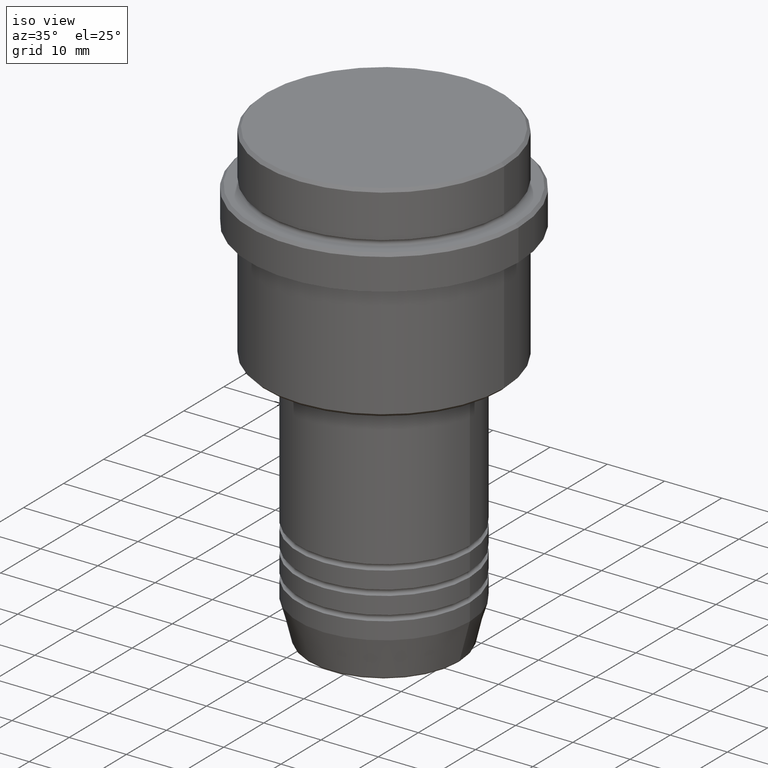
[diagram: clean part render]
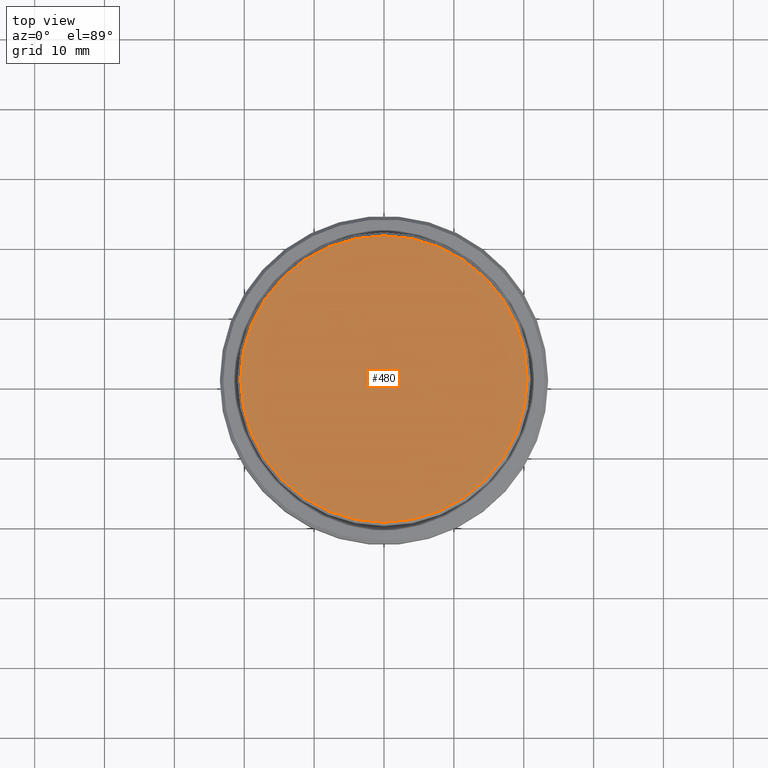
[diagram: tour spotlight — one face highlighted and labeled with its STEP entity id]
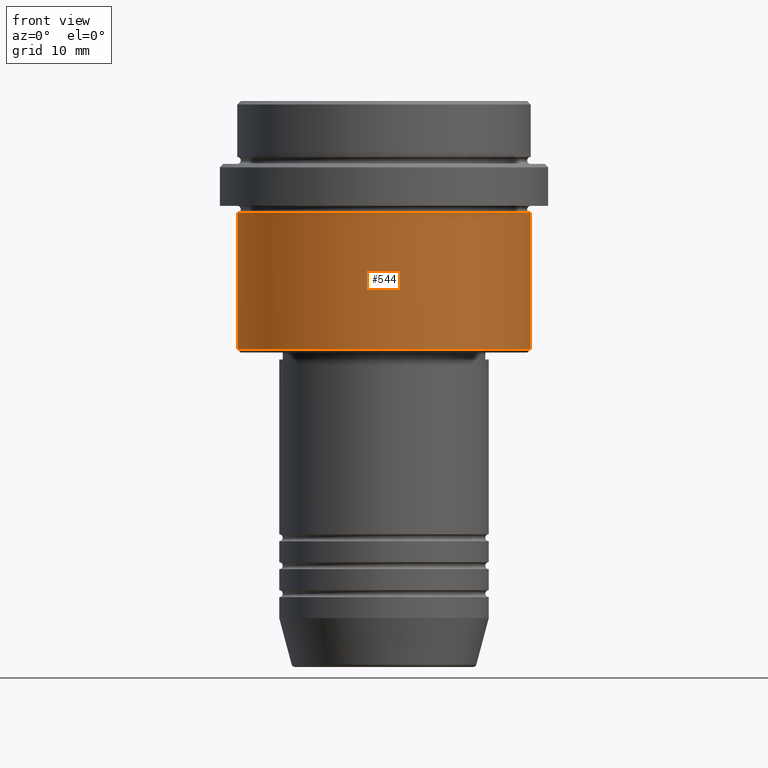
[diagram: tour spotlight — one face highlighted and labeled with its STEP entity id]
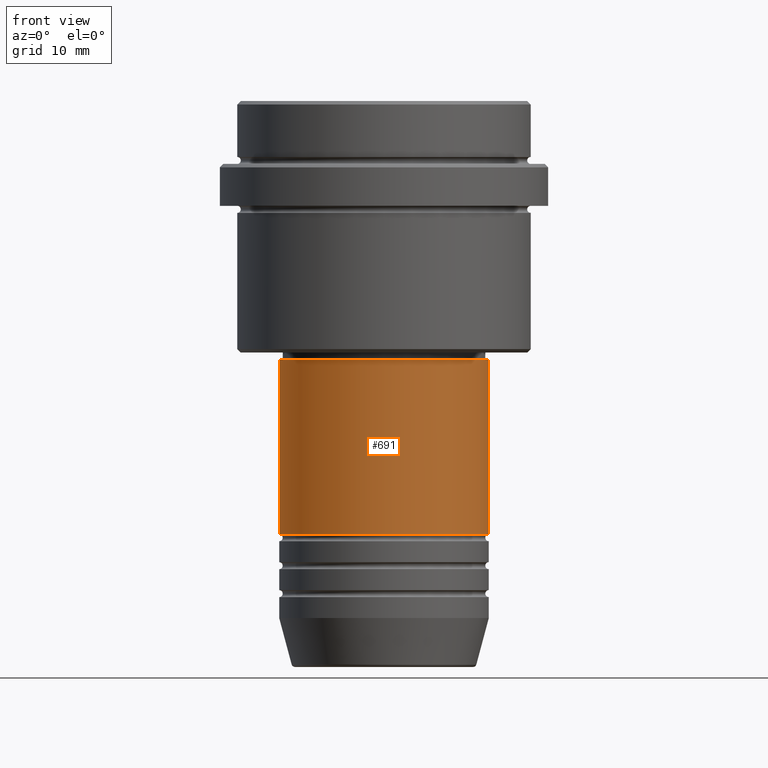
[diagram: tour spotlight — one face highlighted and labeled with its STEP entity id]
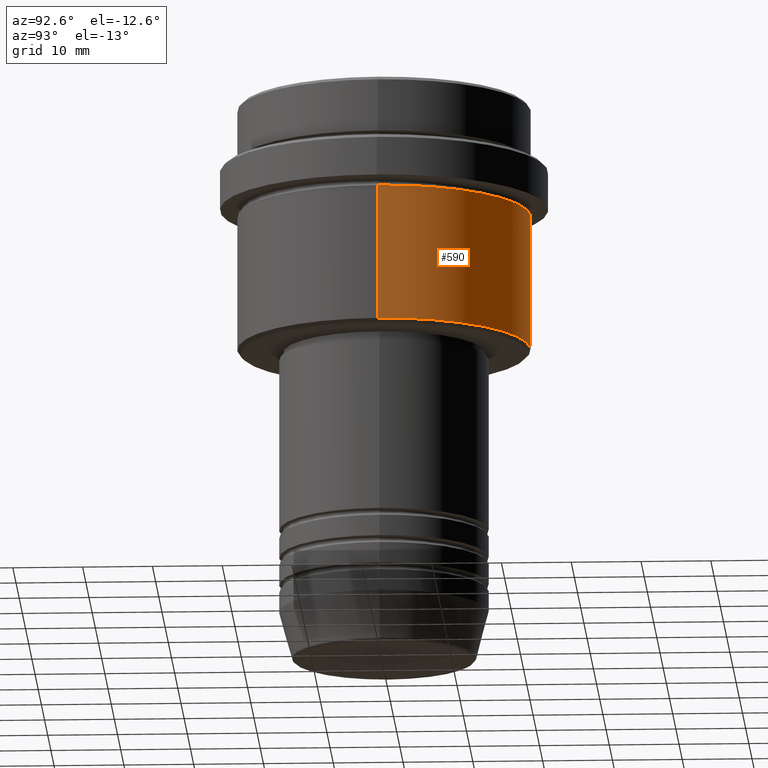
[diagram: tour spotlight — one face highlighted and labeled with its STEP entity id]
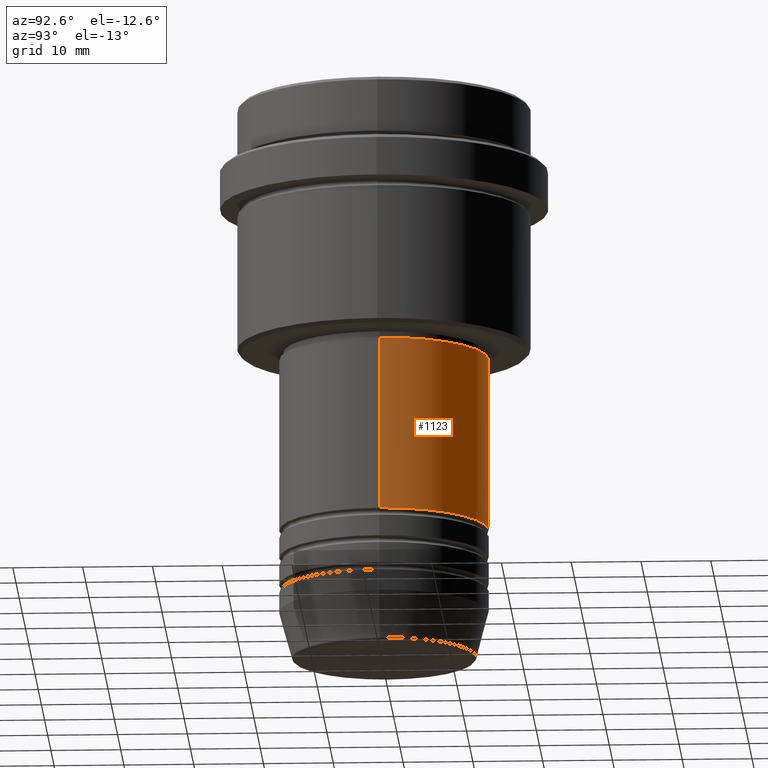
[diagram: tour spotlight — one face highlighted and labeled with its STEP entity id]
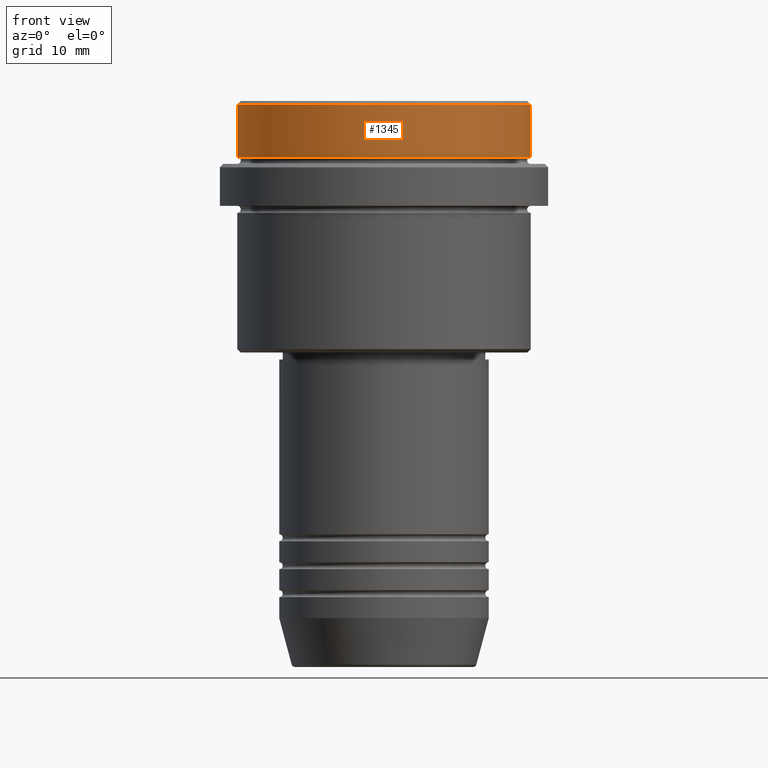
[diagram: tour spotlight — one face highlighted and labeled with its STEP entity id]
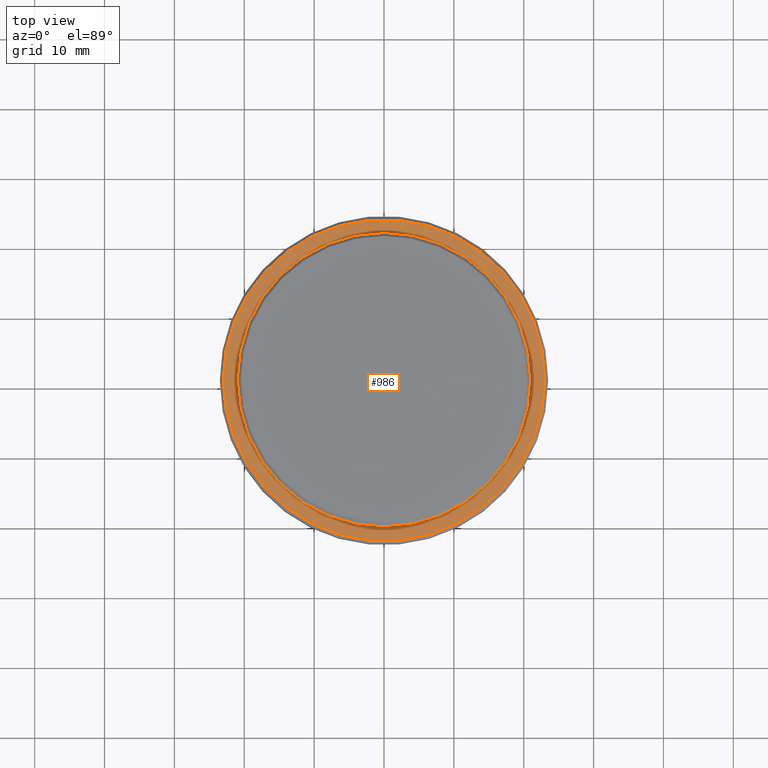
[diagram: tour spotlight — one face highlighted and labeled with its STEP entity id]
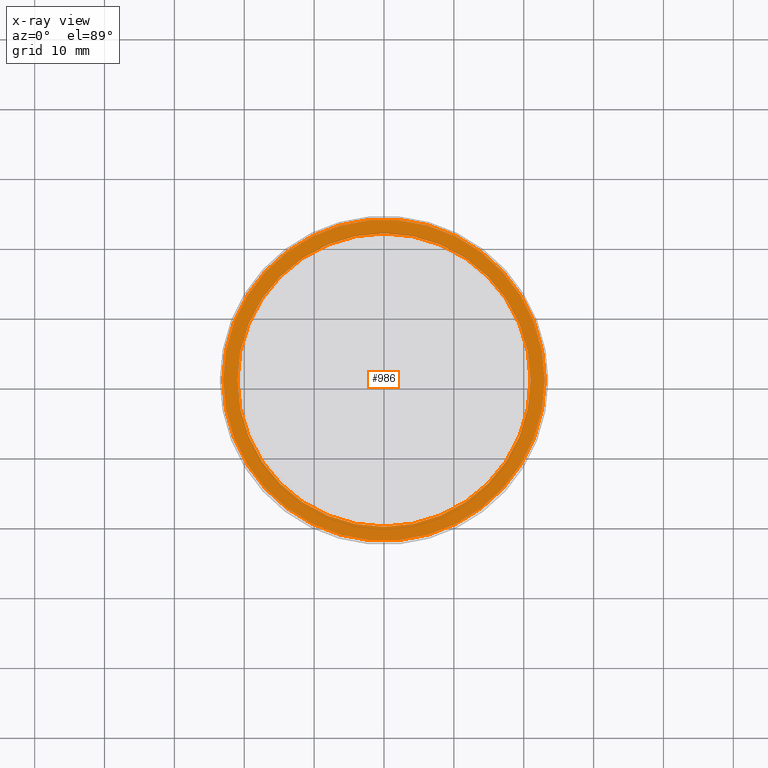
[diagram: x-ray of the same camera — body ghosted, this tour face saturated]
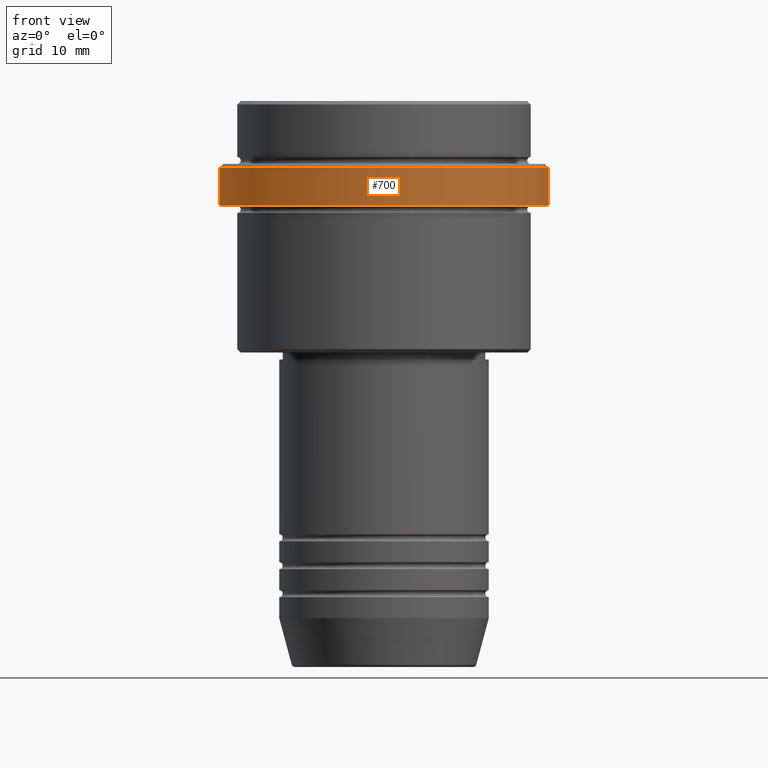
[diagram: tour spotlight — one face highlighted and labeled with its STEP entity id]
A machine part: a face-by-face anatomy tour. The part has 52 B-rep faces; the first image is the clean iso view, then the 8 largest visible faces are spotlighted one at a time (largest first), each with its STEP entity span.

Face 1 — top view, entity #480. In plain terms, the highlighted planar face has unit normal (0, -0, 1).
Definition (entity closure, byte-faithful):
#164 = PLANE ( 'NONE',  #1261 ) ;
#275 = DIRECTION ( 'NONE',  ( 1.000000000000000000, 0.000000000000000000, 0.000000000000000000 ) ) ;
#306 = VERTEX_POINT ( 'NONE', #1311 ) ;
#308 = FACE_OUTER_BOUND ( 'NONE', #526, .T. ) ;
#477 = DIRECTION ( 'NONE',  ( -0.000000000000000000, -0.000000000000000000, 1.000000000000000000 ) ) ;
#480 = ADVANCED_FACE ( 'NONE', ( #308 ), #164, .T. ) ;
#526 = EDGE_LOOP ( 'NONE', ( #1225, #992 ) ) ;
#538 = CARTESIAN_POINT ( 'NONE',  ( 0.000000000000000000, 0.000000000000000000, 0.000000000000000000 ) ) ;
#568 = AXIS2_PLACEMENT_3D ( 'NONE', #1256, #477, #1247 ) ;
#631 = DIRECTION ( 'NONE',  ( -0.000000000000000000, -0.000000000000000000, 1.000000000000000000 ) ) ;
#660 = CIRCLE ( 'NONE', #1349, 20.49999999999997513 ) ;
#774 = EDGE_CURVE ( 'NONE', #1086, #306, #660, .T. ) ;
#796 = CIRCLE ( 'NONE', #568, 20.49999999999997513 ) ;
#891 = EDGE_CURVE ( 'NONE', #306, #1086, #796, .T. ) ;
#951 = DIRECTION ( 'NONE',  ( 0.000000000000000000, -0.000000000000000000, 1.000000000000000000 ) ) ;
#992 = ORIENTED_EDGE ( 'NONE', *, *, #891, .T. ) ;
#1071 = CARTESIAN_POINT ( 'NONE',  ( 0.000000000000000000, 0.000000000000000000, 0.000000000000000000 ) ) ;
#1086 = VERTEX_POINT ( 'NONE', #1315 ) ;
#1225 = ORIENTED_EDGE ( 'NONE', *, *, #774, .T. ) ;
#1247 = DIRECTION ( 'NONE',  ( 1.000000000000000000, 0.000000000000000000, 0.000000000000000000 ) ) ;
#1256 = CARTESIAN_POINT ( 'NONE',  ( 0.000000000000000000, 0.000000000000000000, 0.000000000000000000 ) ) ;
#1261 = AXIS2_PLACEMENT_3D ( 'NONE', #1071, #951, #275 ) ;
#1267 = DIRECTION ( 'NONE',  ( 1.000000000000000000, 0.000000000000000000, 0.000000000000000000 ) ) ;
#1311 = CARTESIAN_POINT ( 'NONE',  ( 20.49999999999997513, 2.541142108230756691E-15, 0.000000000000000000 ) ) ;
#1315 = CARTESIAN_POINT ( 'NONE',  ( -20.49999999999997513, 0.000000000000000000, 0.000000000000000000 ) ) ;
#1349 = AXIS2_PLACEMENT_3D ( 'NONE', #538, #631, #1267 ) ;

Face 2 — front view, entity #544. In plain terms, the highlighted cylindrical surface (partial cylindrical patch) has radius 21 mm, axis along (-0, -0, 1).
Definition (entity closure, byte-faithful):
#8 = DIRECTION ( 'NONE',  ( -0.000000000000000000, -0.000000000000000000, 1.000000000000000000 ) ) ;
#88 = AXIS2_PLACEMENT_3D ( 'NONE', #887, #8, #1409 ) ;
#144 = EDGE_CURVE ( 'NONE', #1051, #1241, #520, .T. ) ;
#173 = CYLINDRICAL_SURFACE ( 'NONE', #1365, 21.00000000000000000 ) ;
#222 = DIRECTION ( 'NONE',  ( -0.000000000000000000, -0.000000000000000000, 1.000000000000000000 ) ) ;
#226 = VERTEX_POINT ( 'NONE', #930 ) ;
#239 = EDGE_CURVE ( 'NONE', #226, #860, #1366, .T. ) ;
#257 = EDGE_CURVE ( 'NONE', #1241, #860, #1144, .T. ) ;
#300 = DIRECTION ( 'NONE',  ( -0.000000000000000000, -0.000000000000000000, 1.000000000000000000 ) ) ;
#362 = ORIENTED_EDGE ( 'NONE', *, *, #1091, .T. ) ;
#406 = CIRCLE ( 'NONE', #1415, 21.00000000000000000 ) ;
#520 = LINE ( 'NONE', #963, #989 ) ;
#544 = ADVANCED_FACE ( 'NONE', ( #1160 ), #173, .T. ) ;
#632 = CARTESIAN_POINT ( 'NONE',  ( 0.000000000000000000, 0.000000000000000000, 0.000000000000000000 ) ) ;
#663 = CARTESIAN_POINT ( 'NONE',  ( 0.000000000000000000, 0.000000000000000000, -35.49999999999997158 ) ) ;
#669 = CARTESIAN_POINT ( 'NONE',  ( -21.00000000000000000, 2.571758278209441661E-15, -16.00000000000000355 ) ) ;
#750 = EDGE_LOOP ( 'NONE', ( #802, #362, #1097, #1151 ) ) ;
#802 = ORIENTED_EDGE ( 'NONE', *, *, #144, .F. ) ;
#832 = CARTESIAN_POINT ( 'NONE',  ( 21.00000000000000000, 0.000000000000000000, -16.00000000000000355 ) ) ;
#842 = CARTESIAN_POINT ( 'NONE',  ( 21.00000000000000000, 0.000000000000000000, 0.000000000000000000 ) ) ;
#860 = VERTEX_POINT ( 'NONE', #832 ) ;
#887 = CARTESIAN_POINT ( 'NONE',  ( 0.000000000000000000, 0.000000000000000000, -16.00000000000000355 ) ) ;
#930 = CARTESIAN_POINT ( 'NONE',  ( 21.00000000000000000, 0.000000000000000000, -35.49999999999997158 ) ) ;
#942 = VECTOR ( 'NONE', #300, 1000.000000000000000 ) ;
#963 = CARTESIAN_POINT ( 'NONE',  ( -21.00000000000000000, 2.571758278209441661E-15, 0.000000000000000000 ) ) ;
#989 = VECTOR ( 'NONE', #1289, 1000.000000000000000 ) ;
#1051 = VERTEX_POINT ( 'NONE', #1298 ) ;
#1091 = EDGE_CURVE ( 'NONE', #1051, #226, #406, .T. ) ;
#1097 = ORIENTED_EDGE ( 'NONE', *, *, #239, .T. ) ;
#1144 = CIRCLE ( 'NONE', #88, 21.00000000000000000 ) ;
#1151 = ORIENTED_EDGE ( 'NONE', *, *, #257, .F. ) ;
#1154 = DIRECTION ( 'NONE',  ( 1.000000000000000000, 0.000000000000000000, 0.000000000000000000 ) ) ;
#1160 = FACE_OUTER_BOUND ( 'NONE', #750, .T. ) ;
#1183 = DIRECTION ( 'NONE',  ( -0.000000000000000000, -0.000000000000000000, 1.000000000000000000 ) ) ;
#1221 = DIRECTION ( 'NONE',  ( -1.000000000000000000, 0.000000000000000000, 0.000000000000000000 ) ) ;
#1241 = VERTEX_POINT ( 'NONE', #669 ) ;
#1289 = DIRECTION ( 'NONE',  ( -0.000000000000000000, -0.000000000000000000, 1.000000000000000000 ) ) ;
#1298 = CARTESIAN_POINT ( 'NONE',  ( -21.00000000000000000, 2.571758278209441661E-15, -35.49999999999997158 ) ) ;
#1365 = AXIS2_PLACEMENT_3D ( 'NONE', #632, #1183, #1154 ) ;
#1366 = LINE ( 'NONE', #842, #942 ) ;
#1409 = DIRECTION ( 'NONE',  ( 1.000000000000000000, 0.000000000000000000, 0.000000000000000000 ) ) ;
#1415 = AXIS2_PLACEMENT_3D ( 'NONE', #663, #222, #1221 ) ;

Face 3 — front view, entity #691. In plain terms, the highlighted cylindrical surface (partial cylindrical patch) has radius 15 mm, axis along (-0, -0, 1).
Definition (entity closure, byte-faithful):
#5 = ORIENTED_EDGE ( 'NONE', *, *, #312, .T. ) ;
#93 = CYLINDRICAL_SURFACE ( 'NONE', #652, 15.00000000000000000 ) ;
#171 = ORIENTED_EDGE ( 'NONE', *, *, #670, .F. ) ;
#234 = EDGE_CURVE ( 'NONE', #798, #1372, #383, .T. ) ;
#312 = EDGE_CURVE ( 'NONE', #730, #824, #324, .T. ) ;
#324 = LINE ( 'NONE', #760, #1105 ) ;
#325 = AXIS2_PLACEMENT_3D ( 'NONE', #969, #1277, #527 ) ;
#383 = LINE ( 'NONE', #825, #1121 ) ;
#414 = ORIENTED_EDGE ( 'NONE', *, *, #234, .F. ) ;
#430 = DIRECTION ( 'NONE',  ( 1.000000000000000000, 0.000000000000000000, 0.000000000000000000 ) ) ;
#481 = EDGE_CURVE ( 'NONE', #798, #730, #649, .T. ) ;
#486 = DIRECTION ( 'NONE',  ( -0.000000000000000000, -0.000000000000000000, 1.000000000000000000 ) ) ;
#491 = CARTESIAN_POINT ( 'NONE',  ( -15.00000000000000000, 1.836970198721029589E-15, -37.00000000000000000 ) ) ;
#527 = DIRECTION ( 'NONE',  ( 1.000000000000000000, 0.000000000000000000, 0.000000000000000000 ) ) ;
#623 = CIRCLE ( 'NONE', #1314, 15.00000000000000000 ) ;
#635 = CARTESIAN_POINT ( 'NONE',  ( 15.00000000000000000, 0.000000000000000000, -61.99999999999987921 ) ) ;
#649 = CIRCLE ( 'NONE', #325, 15.00000000000000000 ) ;
#652 = AXIS2_PLACEMENT_3D ( 'NONE', #657, #1413, #430 ) ;
#657 = CARTESIAN_POINT ( 'NONE',  ( 0.000000000000000000, 0.000000000000000000, 0.000000000000000000 ) ) ;
#670 = EDGE_CURVE ( 'NONE', #1372, #824, #623, .T. ) ;
#691 = ADVANCED_FACE ( 'NONE', ( #856 ), #93, .T. ) ;
#694 = ORIENTED_EDGE ( 'NONE', *, *, #481, .T. ) ;
#701 = EDGE_LOOP ( 'NONE', ( #414, #694, #5, #171 ) ) ;
#702 = CARTESIAN_POINT ( 'NONE',  ( -15.00000000000000000, 1.836970198721029589E-15, -61.99999999999987921 ) ) ;
#730 = VERTEX_POINT ( 'NONE', #635 ) ;
#760 = CARTESIAN_POINT ( 'NONE',  ( 15.00000000000000000, 0.000000000000000000, 0.000000000000000000 ) ) ;
#798 = VERTEX_POINT ( 'NONE', #702 ) ;
#824 = VERTEX_POINT ( 'NONE', #1130 ) ;
#825 = CARTESIAN_POINT ( 'NONE',  ( -15.00000000000000000, 1.836970198721029589E-15, 0.000000000000000000 ) ) ;
#856 = FACE_OUTER_BOUND ( 'NONE', #701, .T. ) ;
#969 = CARTESIAN_POINT ( 'NONE',  ( 0.000000000000000000, 0.000000000000000000, -61.99999999999987921 ) ) ;
#1028 = CARTESIAN_POINT ( 'NONE',  ( 0.000000000000000000, 0.000000000000000000, -37.00000000000000000 ) ) ;
#1038 = DIRECTION ( 'NONE',  ( 1.000000000000000000, 0.000000000000000000, 0.000000000000000000 ) ) ;
#1105 = VECTOR ( 'NONE', #1191, 1000.000000000000000 ) ;
#1121 = VECTOR ( 'NONE', #1263, 1000.000000000000000 ) ;
#1130 = CARTESIAN_POINT ( 'NONE',  ( 15.00000000000000000, 0.000000000000000000, -37.00000000000000000 ) ) ;
#1191 = DIRECTION ( 'NONE',  ( -0.000000000000000000, -0.000000000000000000, 1.000000000000000000 ) ) ;
#1263 = DIRECTION ( 'NONE',  ( -0.000000000000000000, -0.000000000000000000, 1.000000000000000000 ) ) ;
#1277 = DIRECTION ( 'NONE',  ( -0.000000000000000000, -0.000000000000000000, 1.000000000000000000 ) ) ;
#1314 = AXIS2_PLACEMENT_3D ( 'NONE', #1028, #486, #1038 ) ;
#1372 = VERTEX_POINT ( 'NONE', #491 ) ;
#1413 = DIRECTION ( 'NONE',  ( -0.000000000000000000, -0.000000000000000000, 1.000000000000000000 ) ) ;

Face 4 — auxiliary view, entity #590. In plain terms, the highlighted cylindrical surface (partial cylindrical patch) has radius 21 mm, axis along (-0, -0, 1).
Definition (entity closure, byte-faithful):
#17 = DIRECTION ( 'NONE',  ( -1.000000000000000000, 0.000000000000000000, 0.000000000000000000 ) ) ;
#79 = CIRCLE ( 'NONE', #262, 21.00000000000000000 ) ;
#84 = ORIENTED_EDGE ( 'NONE', *, *, #1153, .T. ) ;
#97 = CYLINDRICAL_SURFACE ( 'NONE', #1122, 21.00000000000000000 ) ;
#130 = DIRECTION ( 'NONE',  ( -0.000000000000000000, -0.000000000000000000, 1.000000000000000000 ) ) ;
#134 = DIRECTION ( 'NONE',  ( 1.000000000000000000, 0.000000000000000000, 0.000000000000000000 ) ) ;
#144 = EDGE_CURVE ( 'NONE', #1051, #1241, #520, .T. ) ;
#226 = VERTEX_POINT ( 'NONE', #930 ) ;
#239 = EDGE_CURVE ( 'NONE', #226, #860, #1366, .T. ) ;
#262 = AXIS2_PLACEMENT_3D ( 'NONE', #443, #130, #17 ) ;
#300 = DIRECTION ( 'NONE',  ( -0.000000000000000000, -0.000000000000000000, 1.000000000000000000 ) ) ;
#340 = EDGE_CURVE ( 'NONE', #860, #1241, #413, .T. ) ;
#355 = ORIENTED_EDGE ( 'NONE', *, *, #340, .F. ) ;
#384 = AXIS2_PLACEMENT_3D ( 'NONE', #458, #1227, #134 ) ;
#405 = FACE_OUTER_BOUND ( 'NONE', #982, .T. ) ;
#413 = CIRCLE ( 'NONE', #384, 21.00000000000000000 ) ;
#443 = CARTESIAN_POINT ( 'NONE',  ( 0.000000000000000000, 0.000000000000000000, -35.49999999999997158 ) ) ;
#458 = CARTESIAN_POINT ( 'NONE',  ( 0.000000000000000000, 0.000000000000000000, -16.00000000000000355 ) ) ;
#520 = LINE ( 'NONE', #963, #989 ) ;
#590 = ADVANCED_FACE ( 'NONE', ( #405 ), #97, .T. ) ;
#669 = CARTESIAN_POINT ( 'NONE',  ( -21.00000000000000000, 2.571758278209441661E-15, -16.00000000000000355 ) ) ;
#791 = ORIENTED_EDGE ( 'NONE', *, *, #239, .F. ) ;
#832 = CARTESIAN_POINT ( 'NONE',  ( 21.00000000000000000, 0.000000000000000000, -16.00000000000000355 ) ) ;
#842 = CARTESIAN_POINT ( 'NONE',  ( 21.00000000000000000, 0.000000000000000000, 0.000000000000000000 ) ) ;
#860 = VERTEX_POINT ( 'NONE', #832 ) ;
#869 = DIRECTION ( 'NONE',  ( 1.000000000000000000, 0.000000000000000000, 0.000000000000000000 ) ) ;
#930 = CARTESIAN_POINT ( 'NONE',  ( 21.00000000000000000, 0.000000000000000000, -35.49999999999997158 ) ) ;
#942 = VECTOR ( 'NONE', #300, 1000.000000000000000 ) ;
#963 = CARTESIAN_POINT ( 'NONE',  ( -21.00000000000000000, 2.571758278209441661E-15, 0.000000000000000000 ) ) ;
#982 = EDGE_LOOP ( 'NONE', ( #84, #1198, #355, #791 ) ) ;
#984 = CARTESIAN_POINT ( 'NONE',  ( 0.000000000000000000, 0.000000000000000000, 0.000000000000000000 ) ) ;
#989 = VECTOR ( 'NONE', #1289, 1000.000000000000000 ) ;
#1051 = VERTEX_POINT ( 'NONE', #1298 ) ;
#1122 = AXIS2_PLACEMENT_3D ( 'NONE', #984, #1410, #869 ) ;
#1153 = EDGE_CURVE ( 'NONE', #226, #1051, #79, .T. ) ;
#1198 = ORIENTED_EDGE ( 'NONE', *, *, #144, .T. ) ;
#1227 = DIRECTION ( 'NONE',  ( -0.000000000000000000, -0.000000000000000000, 1.000000000000000000 ) ) ;
#1241 = VERTEX_POINT ( 'NONE', #669 ) ;
#1289 = DIRECTION ( 'NONE',  ( -0.000000000000000000, -0.000000000000000000, 1.000000000000000000 ) ) ;
#1298 = CARTESIAN_POINT ( 'NONE',  ( -21.00000000000000000, 2.571758278209441661E-15, -35.49999999999997158 ) ) ;
#1366 = LINE ( 'NONE', #842, #942 ) ;
#1410 = DIRECTION ( 'NONE',  ( -0.000000000000000000, -0.000000000000000000, 1.000000000000000000 ) ) ;

Face 5 — auxiliary view, entity #1123. In plain terms, the highlighted cylindrical surface (partial cylindrical patch) has radius 15 mm, axis along (-0, -0, 1).
Definition (entity closure, byte-faithful):
#52 = DIRECTION ( 'NONE',  ( -0.000000000000000000, -0.000000000000000000, 1.000000000000000000 ) ) ;
#78 = DIRECTION ( 'NONE',  ( 1.000000000000000000, 0.000000000000000000, 0.000000000000000000 ) ) ;
#116 = AXIS2_PLACEMENT_3D ( 'NONE', #422, #752, #533 ) ;
#129 = EDGE_LOOP ( 'NONE', ( #1009, #315, #567, #403 ) ) ;
#234 = EDGE_CURVE ( 'NONE', #798, #1372, #383, .T. ) ;
#312 = EDGE_CURVE ( 'NONE', #730, #824, #324, .T. ) ;
#315 = ORIENTED_EDGE ( 'NONE', *, *, #234, .T. ) ;
#324 = LINE ( 'NONE', #760, #1105 ) ;
#383 = LINE ( 'NONE', #825, #1121 ) ;
#403 = ORIENTED_EDGE ( 'NONE', *, *, #312, .F. ) ;
#422 = CARTESIAN_POINT ( 'NONE',  ( 0.000000000000000000, 0.000000000000000000, -37.00000000000000000 ) ) ;
#451 = AXIS2_PLACEMENT_3D ( 'NONE', #941, #52, #78 ) ;
#465 = EDGE_CURVE ( 'NONE', #730, #798, #1082, .T. ) ;
#491 = CARTESIAN_POINT ( 'NONE',  ( -15.00000000000000000, 1.836970198721029589E-15, -37.00000000000000000 ) ) ;
#504 = EDGE_CURVE ( 'NONE', #824, #1372, #1262, .T. ) ;
#533 = DIRECTION ( 'NONE',  ( 1.000000000000000000, 0.000000000000000000, 0.000000000000000000 ) ) ;
#549 = AXIS2_PLACEMENT_3D ( 'NONE', #988, #897, #1096 ) ;
#567 = ORIENTED_EDGE ( 'NONE', *, *, #504, .F. ) ;
#635 = CARTESIAN_POINT ( 'NONE',  ( 15.00000000000000000, 0.000000000000000000, -61.99999999999987921 ) ) ;
#702 = CARTESIAN_POINT ( 'NONE',  ( -15.00000000000000000, 1.836970198721029589E-15, -61.99999999999987921 ) ) ;
#730 = VERTEX_POINT ( 'NONE', #635 ) ;
#752 = DIRECTION ( 'NONE',  ( -0.000000000000000000, -0.000000000000000000, 1.000000000000000000 ) ) ;
#760 = CARTESIAN_POINT ( 'NONE',  ( 15.00000000000000000, 0.000000000000000000, 0.000000000000000000 ) ) ;
#798 = VERTEX_POINT ( 'NONE', #702 ) ;
#824 = VERTEX_POINT ( 'NONE', #1130 ) ;
#825 = CARTESIAN_POINT ( 'NONE',  ( -15.00000000000000000, 1.836970198721029589E-15, 0.000000000000000000 ) ) ;
#897 = DIRECTION ( 'NONE',  ( -0.000000000000000000, -0.000000000000000000, 1.000000000000000000 ) ) ;
#941 = CARTESIAN_POINT ( 'NONE',  ( 0.000000000000000000, 0.000000000000000000, -61.99999999999987921 ) ) ;
#988 = CARTESIAN_POINT ( 'NONE',  ( 0.000000000000000000, 0.000000000000000000, 0.000000000000000000 ) ) ;
#1009 = ORIENTED_EDGE ( 'NONE', *, *, #465, .T. ) ;
#1082 = CIRCLE ( 'NONE', #451, 15.00000000000000000 ) ;
#1096 = DIRECTION ( 'NONE',  ( 1.000000000000000000, 0.000000000000000000, 0.000000000000000000 ) ) ;
#1104 = CYLINDRICAL_SURFACE ( 'NONE', #549, 15.00000000000000000 ) ;
#1105 = VECTOR ( 'NONE', #1191, 1000.000000000000000 ) ;
#1121 = VECTOR ( 'NONE', #1263, 1000.000000000000000 ) ;
#1123 = ADVANCED_FACE ( 'NONE', ( #1325 ), #1104, .T. ) ;
#1130 = CARTESIAN_POINT ( 'NONE',  ( 15.00000000000000000, 0.000000000000000000, -37.00000000000000000 ) ) ;
#1191 = DIRECTION ( 'NONE',  ( -0.000000000000000000, -0.000000000000000000, 1.000000000000000000 ) ) ;
#1262 = CIRCLE ( 'NONE', #116, 15.00000000000000000 ) ;
#1263 = DIRECTION ( 'NONE',  ( -0.000000000000000000, -0.000000000000000000, 1.000000000000000000 ) ) ;
#1325 = FACE_OUTER_BOUND ( 'NONE', #129, .T. ) ;
#1372 = VERTEX_POINT ( 'NONE', #491 ) ;

Face 6 — front view, entity #1345. In plain terms, the highlighted cylindrical surface (partial cylindrical patch) has radius 21 mm, axis along (-0, -0, 1).
Definition (entity closure, byte-faithful):
#59 = VERTEX_POINT ( 'NONE', #1368 ) ;
#215 = LINE ( 'NONE', #658, #318 ) ;
#263 = VERTEX_POINT ( 'NONE', #885 ) ;
#301 = DIRECTION ( 'NONE',  ( 1.000000000000000000, 0.000000000000000000, 0.000000000000000000 ) ) ;
#318 = VECTOR ( 'NONE', #1092, 1000.000000000000000 ) ;
#354 = CYLINDRICAL_SURFACE ( 'NONE', #570, 21.00000000000000000 ) ;
#371 = ORIENTED_EDGE ( 'NONE', *, *, #535, .T. ) ;
#382 = CIRCLE ( 'NONE', #1101, 21.00000000000000000 ) ;
#457 = ORIENTED_EDGE ( 'NONE', *, *, #460, .T. ) ;
#460 = EDGE_CURVE ( 'NONE', #466, #1399, #806, .T. ) ;
#466 = VERTEX_POINT ( 'NONE', #851 ) ;
#535 = EDGE_CURVE ( 'NONE', #1399, #59, #723, .T. ) ;
#570 = AXIS2_PLACEMENT_3D ( 'NONE', #811, #1231, #704 ) ;
#585 = DIRECTION ( 'NONE',  ( 0.000000000000000000, 0.000000000000000000, -1.000000000000000000 ) ) ;
#603 = EDGE_LOOP ( 'NONE', ( #939, #457, #371, #1062 ) ) ;
#658 = CARTESIAN_POINT ( 'NONE',  ( -21.00000000000000000, 2.571758278209441661E-15, 0.000000000000000000 ) ) ;
#699 = DIRECTION ( 'NONE',  ( 1.000000000000000000, 0.000000000000000000, 0.000000000000000000 ) ) ;
#704 = DIRECTION ( 'NONE',  ( 1.000000000000000000, 0.000000000000000000, 0.000000000000000000 ) ) ;
#712 = AXIS2_PLACEMENT_3D ( 'NONE', #1393, #843, #301 ) ;
#723 = LINE ( 'NONE', #1176, #917 ) ;
#806 = CIRCLE ( 'NONE', #712, 21.00000000000000000 ) ;
#811 = CARTESIAN_POINT ( 'NONE',  ( 0.000000000000000000, 0.000000000000000000, 0.000000000000000000 ) ) ;
#843 = DIRECTION ( 'NONE',  ( -0.000000000000000000, -0.000000000000000000, 1.000000000000000000 ) ) ;
#851 = CARTESIAN_POINT ( 'NONE',  ( -21.00000000000000000, 2.571758278209441661E-15, -7.999999999999998224 ) ) ;
#885 = CARTESIAN_POINT ( 'NONE',  ( -21.00000000000000000, 2.571758278209441661E-15, -0.5000000000000247580 ) ) ;
#917 = VECTOR ( 'NONE', #1167, 1000.000000000000000 ) ;
#934 = EDGE_CURVE ( 'NONE', #466, #263, #215, .T. ) ;
#939 = ORIENTED_EDGE ( 'NONE', *, *, #934, .F. ) ;
#1062 = ORIENTED_EDGE ( 'NONE', *, *, #1245, .T. ) ;
#1067 = CARTESIAN_POINT ( 'NONE',  ( 21.00000000000000000, 0.000000000000000000, -7.999999999999998224 ) ) ;
#1092 = DIRECTION ( 'NONE',  ( -0.000000000000000000, -0.000000000000000000, 1.000000000000000000 ) ) ;
#1101 = AXIS2_PLACEMENT_3D ( 'NONE', #1266, #585, #699 ) ;
#1167 = DIRECTION ( 'NONE',  ( -0.000000000000000000, -0.000000000000000000, 1.000000000000000000 ) ) ;
#1176 = CARTESIAN_POINT ( 'NONE',  ( 21.00000000000000000, 0.000000000000000000, 0.000000000000000000 ) ) ;
#1231 = DIRECTION ( 'NONE',  ( -0.000000000000000000, -0.000000000000000000, 1.000000000000000000 ) ) ;
#1245 = EDGE_CURVE ( 'NONE', #59, #263, #382, .T. ) ;
#1266 = CARTESIAN_POINT ( 'NONE',  ( 0.000000000000000000, 0.000000000000000000, -0.5000000000000247580 ) ) ;
#1336 = FACE_OUTER_BOUND ( 'NONE', #603, .T. ) ;
#1345 = ADVANCED_FACE ( 'NONE', ( #1336 ), #354, .T. ) ;
#1368 = CARTESIAN_POINT ( 'NONE',  ( 21.00000000000000000, 0.000000000000000000, -0.5000000000000247580 ) ) ;
#1393 = CARTESIAN_POINT ( 'NONE',  ( 0.000000000000000000, 0.000000000000000000, -7.999999999999998224 ) ) ;
#1399 = VERTEX_POINT ( 'NONE', #1067 ) ;

Face 7 — top view, entity #986. An x-ray twin of the same camera follows (body ghosted, this face saturated) — the face is partly hidden behind the body. In plain terms, the highlighted planar face has unit normal (0, -0, 1).
Definition (entity closure, byte-faithful):
#28 = EDGE_LOOP ( 'NONE', ( #1189, #141 ) ) ;
#83 = ORIENTED_EDGE ( 'NONE', *, *, #195, .T. ) ;
#102 = FACE_BOUND ( 'NONE', #1182, .T. ) ;
#120 = DIRECTION ( 'NONE',  ( -0.000000000000000000, -0.000000000000000000, 1.000000000000000000 ) ) ;
#125 = AXIS2_PLACEMENT_3D ( 'NONE', #1283, #189, #295 ) ;
#139 = VERTEX_POINT ( 'NONE', #633 ) ;
#141 = ORIENTED_EDGE ( 'NONE', *, *, #1352, .T. ) ;
#148 = AXIS2_PLACEMENT_3D ( 'NONE', #256, #1137, #925 ) ;
#165 = EDGE_CURVE ( 'NONE', #1317, #1246, #556, .T. ) ;
#189 = DIRECTION ( 'NONE',  ( 0.000000000000000000, -0.000000000000000000, 1.000000000000000000 ) ) ;
#195 = EDGE_CURVE ( 'NONE', #1246, #1317, #501, .T. ) ;
#206 = AXIS2_PLACEMENT_3D ( 'NONE', #213, #1404, #1090 ) ;
#213 = CARTESIAN_POINT ( 'NONE',  ( 0.000000000000000000, 0.000000000000000000, -9.000000000000000000 ) ) ;
#220 = CARTESIAN_POINT ( 'NONE',  ( 0.000000000000000000, 0.000000000000000000, -9.000000000000000000 ) ) ;
#256 = CARTESIAN_POINT ( 'NONE',  ( 0.000000000000000000, 0.000000000000000000, -9.000000000000000000 ) ) ;
#277 = CARTESIAN_POINT ( 'NONE',  ( 20.99999999999999289, 0.000000000000000000, -9.000000000000000000 ) ) ;
#286 = PLANE ( 'NONE',  #125 ) ;
#295 = DIRECTION ( 'NONE',  ( 1.000000000000000000, 0.000000000000000000, 0.000000000000000000 ) ) ;
#342 = CIRCLE ( 'NONE', #668, 23.00000000000001066 ) ;
#361 = AXIS2_PLACEMENT_3D ( 'NONE', #220, #1213, #1094 ) ;
#423 = FACE_OUTER_BOUND ( 'NONE', #28, .T. ) ;
#437 = DIRECTION ( 'NONE',  ( 1.000000000000000000, 0.000000000000000000, 0.000000000000000000 ) ) ;
#447 = CARTESIAN_POINT ( 'NONE',  ( 0.000000000000000000, 0.000000000000000000, -9.000000000000000000 ) ) ;
#501 = CIRCLE ( 'NONE', #361, 20.99999999999999289 ) ;
#556 = CIRCLE ( 'NONE', #206, 20.99999999999999289 ) ;
#633 = CARTESIAN_POINT ( 'NONE',  ( 23.00000000000001066, 2.847303808017596928E-15, -9.000000000000000000 ) ) ;
#668 = AXIS2_PLACEMENT_3D ( 'NONE', #447, #120, #437 ) ;
#925 = DIRECTION ( 'NONE',  ( 1.000000000000000000, 0.000000000000000000, 0.000000000000000000 ) ) ;
#986 = ADVANCED_FACE ( 'NONE', ( #423, #102 ), #286, .T. ) ;
#1035 = CARTESIAN_POINT ( 'NONE',  ( -20.99999999999999289, 2.571758278209440872E-15, -9.000000000000000000 ) ) ;
#1090 = DIRECTION ( 'NONE',  ( 1.000000000000000000, 0.000000000000000000, 0.000000000000000000 ) ) ;
#1094 = DIRECTION ( 'NONE',  ( 1.000000000000000000, 0.000000000000000000, 0.000000000000000000 ) ) ;
#1137 = DIRECTION ( 'NONE',  ( -0.000000000000000000, -0.000000000000000000, 1.000000000000000000 ) ) ;
#1143 = VERTEX_POINT ( 'NONE', #1329 ) ;
#1182 = EDGE_LOOP ( 'NONE', ( #83, #1408 ) ) ;
#1189 = ORIENTED_EDGE ( 'NONE', *, *, #1208, .T. ) ;
#1208 = EDGE_CURVE ( 'NONE', #1143, #139, #342, .T. ) ;
#1213 = DIRECTION ( 'NONE',  ( 0.000000000000000000, 0.000000000000000000, -1.000000000000000000 ) ) ;
#1246 = VERTEX_POINT ( 'NONE', #277 ) ;
#1282 = CIRCLE ( 'NONE', #148, 23.00000000000001066 ) ;
#1283 = CARTESIAN_POINT ( 'NONE',  ( 0.000000000000000000, 20.49999999999999645, -9.000000000000000000 ) ) ;
#1317 = VERTEX_POINT ( 'NONE', #1035 ) ;
#1329 = CARTESIAN_POINT ( 'NONE',  ( -23.00000000000001066, 0.000000000000000000, -9.000000000000000000 ) ) ;
#1352 = EDGE_CURVE ( 'NONE', #139, #1143, #1282, .T. ) ;
#1404 = DIRECTION ( 'NONE',  ( 0.000000000000000000, 0.000000000000000000, -1.000000000000000000 ) ) ;
#1408 = ORIENTED_EDGE ( 'NONE', *, *, #165, .T. ) ;

Face 8 — front view, entity #700. In plain terms, the highlighted cylindrical surface (partial cylindrical patch) has radius 23.5 mm, axis along (-0, -0, 1).
Definition (entity closure, byte-faithful):
#35 = VERTEX_POINT ( 'NONE', #1346 ) ;
#122 = EDGE_CURVE ( 'NONE', #600, #612, #1140, .T. ) ;
#140 = DIRECTION ( 'NONE',  ( -0.000000000000000000, -0.000000000000000000, 1.000000000000000000 ) ) ;
#187 = CARTESIAN_POINT ( 'NONE',  ( 0.000000000000000000, 0.000000000000000000, -9.500000000000000000 ) ) ;
#218 = CARTESIAN_POINT ( 'NONE',  ( -23.50000000000000711, 2.877919977996281109E-15, -15.00000000000000000 ) ) ;
#225 = DIRECTION ( 'NONE',  ( -0.000000000000000000, -0.000000000000000000, 1.000000000000000000 ) ) ;
#254 = EDGE_CURVE ( 'NONE', #35, #600, #1327, .T. ) ;
#314 = VERTEX_POINT ( 'NONE', #218 ) ;
#328 = CARTESIAN_POINT ( 'NONE',  ( 0.000000000000000000, 0.000000000000000000, 0.000000000000000000 ) ) ;
#356 = AXIS2_PLACEMENT_3D ( 'NONE', #816, #140, #582 ) ;
#425 = ORIENTED_EDGE ( 'NONE', *, *, #854, .T. ) ;
#433 = CARTESIAN_POINT ( 'NONE',  ( 23.50000000000000000, 0.000000000000000000, 0.000000000000000000 ) ) ;
#434 = VECTOR ( 'NONE', #225, 1000.000000000000000 ) ;
#483 = DIRECTION ( 'NONE',  ( -0.000000000000000000, -0.000000000000000000, 1.000000000000000000 ) ) ;
#513 = CIRCLE ( 'NONE', #356, 23.50000000000000355 ) ;
#582 = DIRECTION ( 'NONE',  ( 1.000000000000000000, 0.000000000000000000, 0.000000000000000000 ) ) ;
#600 = VERTEX_POINT ( 'NONE', #1192 ) ;
#612 = VERTEX_POINT ( 'NONE', #1089 ) ;
#659 = ORIENTED_EDGE ( 'NONE', *, *, #122, .T. ) ;
#664 = ORIENTED_EDGE ( 'NONE', *, *, #1309, .F. ) ;
#700 = ADVANCED_FACE ( 'NONE', ( #1313 ), #1291, .T. ) ;
#809 = AXIS2_PLACEMENT_3D ( 'NONE', #328, #1074, #973 ) ;
#814 = CARTESIAN_POINT ( 'NONE',  ( -23.50000000000000000, 2.877919977996280320E-15, 0.000000000000000000 ) ) ;
#816 = CARTESIAN_POINT ( 'NONE',  ( 0.000000000000000000, 0.000000000000000000, -15.00000000000000000 ) ) ;
#828 = DIRECTION ( 'NONE',  ( 0.000000000000000000, 0.000000000000000000, -1.000000000000000000 ) ) ;
#853 = DIRECTION ( 'NONE',  ( 1.000000000000000000, 0.000000000000000000, 0.000000000000000000 ) ) ;
#854 = EDGE_CURVE ( 'NONE', #314, #35, #513, .T. ) ;
#912 = VECTOR ( 'NONE', #483, 1000.000000000000000 ) ;
#973 = DIRECTION ( 'NONE',  ( 1.000000000000000000, 0.000000000000000000, 0.000000000000000000 ) ) ;
#1014 = LINE ( 'NONE', #814, #912 ) ;
#1036 = ORIENTED_EDGE ( 'NONE', *, *, #254, .T. ) ;
#1074 = DIRECTION ( 'NONE',  ( -0.000000000000000000, -0.000000000000000000, 1.000000000000000000 ) ) ;
#1089 = CARTESIAN_POINT ( 'NONE',  ( -23.50000000000000000, 2.877919977996280320E-15, -9.500000000000000000 ) ) ;
#1140 = CIRCLE ( 'NONE', #1232, 23.50000000000000000 ) ;
#1192 = CARTESIAN_POINT ( 'NONE',  ( 23.50000000000000000, 0.000000000000000000, -9.500000000000000000 ) ) ;
#1232 = AXIS2_PLACEMENT_3D ( 'NONE', #187, #828, #853 ) ;
#1236 = EDGE_LOOP ( 'NONE', ( #664, #425, #1036, #659 ) ) ;
#1291 = CYLINDRICAL_SURFACE ( 'NONE', #809, 23.50000000000000000 ) ;
#1309 = EDGE_CURVE ( 'NONE', #314, #612, #1014, .T. ) ;
#1313 = FACE_OUTER_BOUND ( 'NONE', #1236, .T. ) ;
#1327 = LINE ( 'NONE', #433, #434 ) ;
#1346 = CARTESIAN_POINT ( 'NONE',  ( 23.50000000000000355, 0.000000000000000000, -15.00000000000000000 ) ) ;